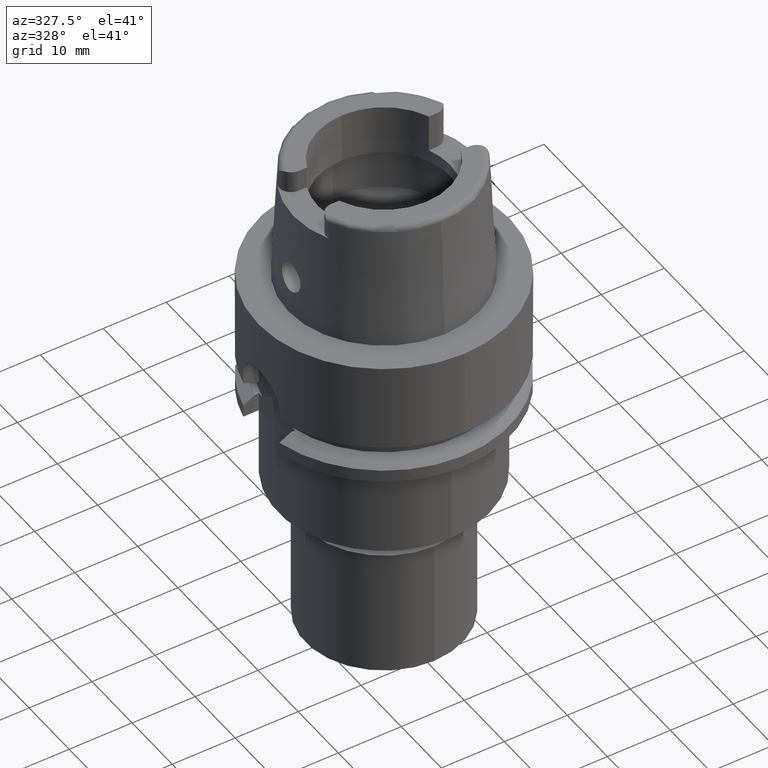
[diagram: clean part render]
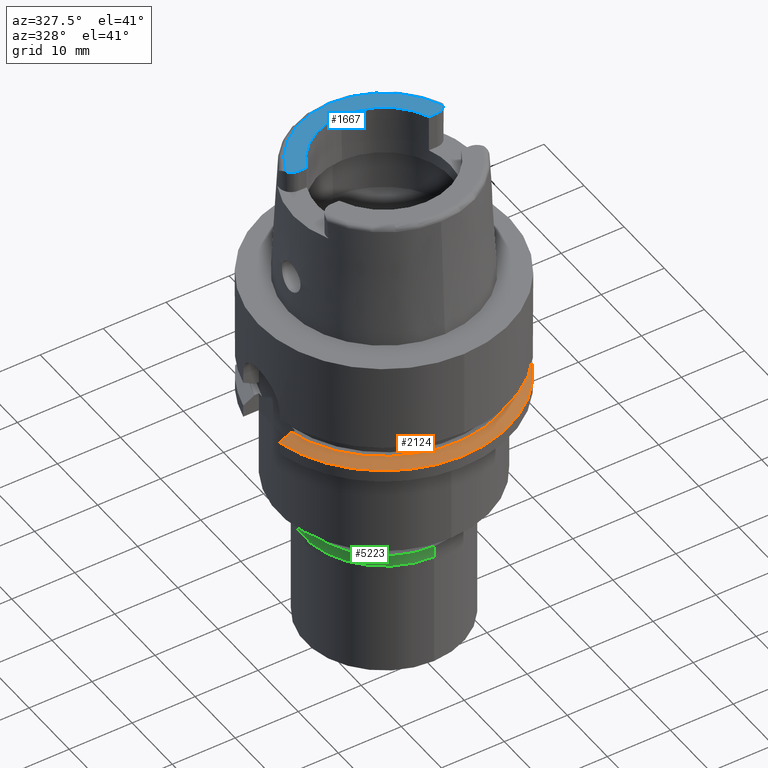
[diagram: same view with three faces highlighted in distinct colors, each labeled with its STEP entity id]
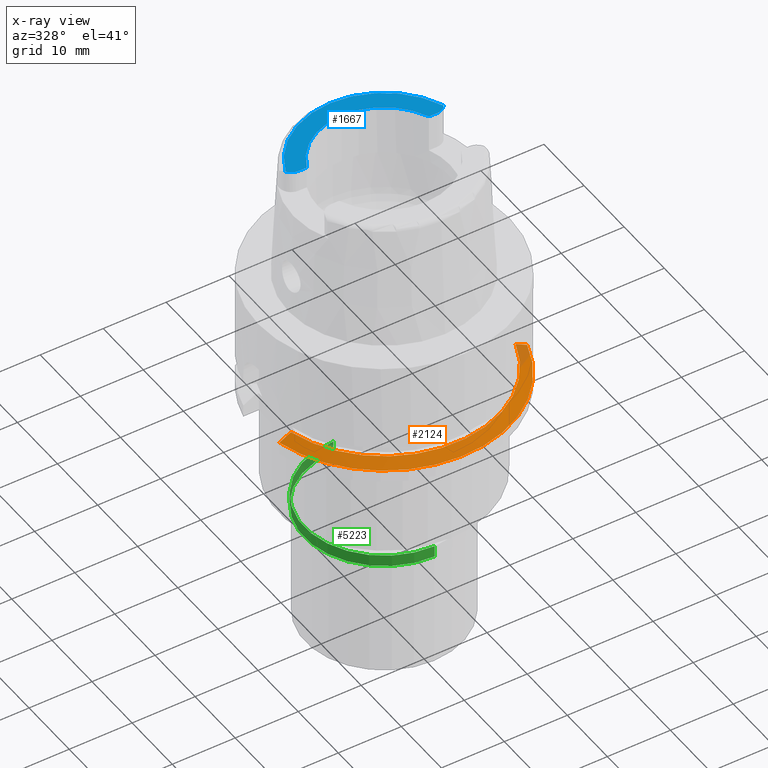
[diagram: x-ray of the same camera — body ghosted, the three highlighted faces saturated]
A machine part, auxiliary view with three faces highlighted in distinct colors.
The next image is the same camera in x-ray (body ghosted, the three faces saturated) — at least one of them is partly hidden behind the body in this view.
Their STEP definitions:

[orange] entity #2124 — the highlighted conical surface has half-angle 60 deg.
#243 = CARTESIAN_POINT ( 'NONE',  ( -17.87034388033999832, -4.500000000000000000, -17.11321766119999666 ) ) ;
#283 = CARTESIAN_POINT ( 'NONE',  ( 0.0000000000000000000, 1.010206699502999904E-14, -18.02072594216000212 ) ) ;
#303 = CARTESIAN_POINT ( 'NONE',  ( -17.66798451012000370, -4.500000000000000000, -17.00000000000000000 ) ) ;
#606 = EDGE_CURVE ( 'NONE', #4935, #5490, #4849, .T. ) ;
#636 = CARTESIAN_POINT ( 'NONE',  ( -19.28525784596000037, -4.499999999998999911, -17.90713804354999894 ) ) ;
#694 = EDGE_LOOP ( 'NONE', ( #4323, #1676, #3988, #4926 ) ) ;
#815 = AXIS2_PLACEMENT_3D ( 'NONE', #4211, #3364, #2116 ) ;
#831 = EDGE_CURVE ( 'NONE', #2115, #1159, #3154, .T. ) ;
#973 = CARTESIAN_POINT ( 'NONE',  ( 17.98542911826000079, -5.499999995041999767, -17.33212835041999966 ) ) ;
#1099 = DIRECTION ( 'NONE',  ( 0.9614442261514726251, -0.2749999999999924727, 0.0000000000000000000 ) ) ;
#1159 = VERTEX_POINT ( 'NONE', #3499 ) ;
#1424 = CARTESIAN_POINT ( 'NONE',  ( 19.22888452303000051, -5.499999999998999911, -18.02072594216000212 ) ) ;
#1676 = ORIENTED_EDGE ( 'NONE', *, *, #831, .F. ) ;
#2018 = EDGE_CURVE ( 'NONE', #4935, #2115, #3763, .T. ) ;
#2115 = VERTEX_POINT ( 'NONE', #1424 ) ;
#2116 = DIRECTION ( 'NONE',  ( 0.0000000000000000000, -1.000000000000000000, 0.0000000000000000000 ) ) ;
#2124 = ADVANCED_FACE ( 'NONE', ( #5060 ), #3606, .T. ) ;
#2137 = CARTESIAN_POINT ( 'NONE',  ( 19.22888452303000051, -5.499999999998999911, -18.02072594216000212 ) ) ;
#2156 = EDGE_CURVE ( 'NONE', #1159, #5490, #4046, .T. ) ;
#2524 = CARTESIAN_POINT ( 'NONE',  ( 18.60082375438999591, -5.499999794661999175, -17.67238360300000011 ) ) ;
#2685 = CARTESIAN_POINT ( 'NONE',  ( 0.0000000000000000000, 1.010206699502999904E-14, -17.51036297107999928 ) ) ;
#2765 = CARTESIAN_POINT ( 'NONE',  ( -19.48717526991000071, -4.499999999998999911, -18.02072594216000212 ) ) ;
#2776 = DIRECTION ( 'NONE',  ( 0.0000000000000000000, 0.0000000000000000000, -1.000000000000000000 ) ) ;
#2968 = CARTESIAN_POINT ( 'NONE',  ( 19.01831961899999968, -5.500000482426000481, -17.90384757388999759 ) ) ;
#3154 = CIRCLE ( 'NONE', #4319, 20.00000000000000355 ) ;
#3364 = DIRECTION ( 'NONE',  ( 0.0000000000000000000, 0.0000000000000000000, -1.000000000000000000 ) ) ;
#3499 = CARTESIAN_POINT ( 'NONE',  ( -19.48717526991000071, -4.499999999998999911, -18.02072594216000212 ) ) ;
#3525 = CARTESIAN_POINT ( 'NONE',  ( 17.58239617449000036, -5.500000148458999760, -17.10993385339000028 ) ) ;
#3606 = CONICAL_SURFACE ( 'NONE', #4330, 19.11602540378000015, 1.047197551196400456 ) ;
#3759 = CARTESIAN_POINT ( 'NONE',  ( 17.38268324078999783, -5.500000000000000000, -17.00000000000000000 ) ) ;
#3763 = B_SPLINE_CURVE_WITH_KNOTS ( 'NONE', 3,
 ( #3978, #3525, #973, #2524, #2968, #2137 ),
 .UNSPECIFIED., .F., .F.,
 ( 4, 1, 1, 4 ),
 ( 0.0000000000000000000, 0.3333333333333000081, 0.6666666666667000474, 1.000000000000000000 ),
 .UNSPECIFIED. ) ;
#3978 = CARTESIAN_POINT ( 'NONE',  ( 17.38268324078999783, -5.500000000000000000, -17.00000000000000000 ) ) ;
#3988 = ORIENTED_EDGE ( 'NONE', *, *, #2018, .F. ) ;
#4046 = B_SPLINE_CURVE_WITH_KNOTS ( 'NONE', 3,
 ( #2765, #636, #4061, #5334, #243, #303 ),
 .UNSPECIFIED., .F., .F.,
 ( 4, 1, 1, 4 ),
 ( 0.0000000000000000000, 0.3333333333333000081, 0.6666666666667000474, 1.000000000000000000 ),
 .UNSPECIFIED. ) ;
#4061 = CARTESIAN_POINT ( 'NONE',  ( -18.88128293141999947, -4.500000000000000000, -17.68007248934999964 ) ) ;
#4211 = CARTESIAN_POINT ( 'NONE',  ( 0.0000000000000000000, 1.010206699502999904E-14, -17.00000000000000000 ) ) ;
#4319 = AXIS2_PLACEMENT_3D ( 'NONE', #283, #2776, #1099 ) ;
#4323 = ORIENTED_EDGE ( 'NONE', *, *, #2156, .F. ) ;
#4330 = AXIS2_PLACEMENT_3D ( 'NONE', #2685, #4650, #4439 ) ;
#4439 = DIRECTION ( 'NONE',  ( 0.0000000000000000000, -1.000000000000000000, 0.0000000000000000000 ) ) ;
#4650 = DIRECTION ( 'NONE',  ( 0.0000000000000000000, 0.0000000000000000000, -1.000000000000000000 ) ) ;
#4849 = CIRCLE ( 'NONE', #815, 18.23205080757000118 ) ;
#4926 = ORIENTED_EDGE ( 'NONE', *, *, #606, .T. ) ;
#4935 = VERTEX_POINT ( 'NONE', #3759 ) ;
#5060 = FACE_OUTER_BOUND ( 'NONE', #694, .T. ) ;
#5334 = CARTESIAN_POINT ( 'NONE',  ( -18.27489697164999782, -4.500000000000000000, -17.33980939873999816 ) ) ;
#5343 = CARTESIAN_POINT ( 'NONE',  ( -17.66798451012000370, -4.500000000000000000, -17.00000000000000000 ) ) ;
#5490 = VERTEX_POINT ( 'NONE', #5343 ) ;

[blue] entity #1667 — the highlighted planar face has unit normal (0, 0, -1).
#40 = LINE ( 'NONE', #4721, #991 ) ;
#184 = CARTESIAN_POINT ( 'NONE',  ( 0.0000000000000000000, 10.50000000000000000, 20.00000000000000000 ) ) ;
#381 = DIRECTION ( 'NONE',  ( 0.0000000000000000000, 0.0000000000000000000, 1.000000000000000000 ) ) ;
#436 = DIRECTION ( 'NONE',  ( 0.8199385816669358951, -0.5724515021327251096, 0.0000000000000000000 ) ) ;
#508 = VERTEX_POINT ( 'NONE', #184 ) ;
#687 = CARTESIAN_POINT ( 'NONE',  ( 11.00000000000000000, 4.025000000000000355, 20.00000000000000000 ) ) ;
#727 = CIRCLE ( 'NONE', #2520, 10.50000000000000000 ) ;
#735 = CARTESIAN_POINT ( 'NONE',  ( 9.697905701747998819, 4.025000000000000355, 20.00000000000000000 ) ) ;
#855 = CARTESIAN_POINT ( 'NONE',  ( 11.00000000000000000, 5.904999999999999361, 20.00000000000000000 ) ) ;
#863 = VERTEX_POINT ( 'NONE', #1920 ) ;
#915 = AXIS2_PLACEMENT_3D ( 'NONE', #5270, #4932, #4425 ) ;
#956 = VERTEX_POINT ( 'NONE', #3327 ) ;
#989 = PLANE ( 'NONE',  #915 ) ;
#991 = VECTOR ( 'NONE', #5156, 1000.000000000000000 ) ;
#1135 = CARTESIAN_POINT ( 'NONE',  ( 0.0000000000000000000, 1.514765625864999983E-14, 20.00000000000000000 ) ) ;
#1433 = AXIS2_PLACEMENT_3D ( 'NONE', #4883, #2733, #3229 ) ;
#1474 = EDGE_CURVE ( 'NONE', #2381, #4385, #5213, .T. ) ;
#1490 = ORIENTED_EDGE ( 'NONE', *, *, #1474, .T. ) ;
#1667 = ADVANCED_FACE ( 'NONE', ( #4074 ), #989, .F. ) ;
#1724 = CIRCLE ( 'NONE', #4231, 1.880000000000000115 ) ;
#1901 = ORIENTED_EDGE ( 'NONE', *, *, #4884, .F. ) ;
#1920 = CARTESIAN_POINT ( 'NONE',  ( -12.54148453352999937, 4.828791175990000184, 20.00000000000000000 ) ) ;
#2193 = ORIENTED_EDGE ( 'NONE', *, *, #3983, .F. ) ;
#2223 = EDGE_LOOP ( 'NONE', ( #3955, #3223, #3121, #1901, #4381, #2193, #1490 ) ) ;
#2271 = VECTOR ( 'NONE', #4304, 1000.000000000000000 ) ;
#2301 = VERTEX_POINT ( 'NONE', #687 ) ;
#2381 = VERTEX_POINT ( 'NONE', #2481 ) ;
#2388 = EDGE_CURVE ( 'NONE', #863, #956, #4194, .T. ) ;
#2462 = CARTESIAN_POINT ( 'NONE',  ( -9.697905701747998819, 4.025000000000000355, 20.00000000000000000 ) ) ;
#2481 = CARTESIAN_POINT ( 'NONE',  ( -11.00000000000000000, 4.025000000000000355, 20.00000000000000000 ) ) ;
#2520 = AXIS2_PLACEMENT_3D ( 'NONE', #1135, #381, #4139 ) ;
#2623 = CARTESIAN_POINT ( 'NONE',  ( -11.00000000000000000, 5.904999999999999361, 20.00000000000000000 ) ) ;
#2733 = DIRECTION ( 'NONE',  ( 0.0000000000000000000, 0.0000000000000000000, 1.000000000000000000 ) ) ;
#2998 = EDGE_CURVE ( 'NONE', #4983, #508, #3130, .T. ) ;
#3121 = ORIENTED_EDGE ( 'NONE', *, *, #3968, .T. ) ;
#3125 = AXIS2_PLACEMENT_3D ( 'NONE', #4698, #5052, #3316 ) ;
#3130 = CIRCLE ( 'NONE', #1433, 10.49999999999999822 ) ;
#3223 = ORIENTED_EDGE ( 'NONE', *, *, #2998, .F. ) ;
#3229 = DIRECTION ( 'NONE',  ( 0.9236100668331782559, 0.3833333333332911153, 0.0000000000000000000 ) ) ;
#3316 = DIRECTION ( 'NONE',  ( 0.001485959642573941777, 0.9999988959613608230, 0.0000000000000000000 ) ) ;
#3327 = CARTESIAN_POINT ( 'NONE',  ( 12.54148453352999937, 4.828791175991000273, 20.00000000000000000 ) ) ;
#3398 = CARTESIAN_POINT ( 'NONE',  ( -11.00000000000000000, 4.025000000000000355, 20.00000000000000000 ) ) ;
#3884 = DIRECTION ( 'NONE',  ( 0.0000000000000000000, 0.0000000000000000000, -1.000000000000000000 ) ) ;
#3955 = ORIENTED_EDGE ( 'NONE', *, *, #4751, .F. ) ;
#3968 = EDGE_CURVE ( 'NONE', #4983, #2301, #40, .T. ) ;
#3983 = EDGE_CURVE ( 'NONE', #2381, #863, #4124, .T. ) ;
#4036 = AXIS2_PLACEMENT_3D ( 'NONE', #2623, #3884, #4746 ) ;
#4074 = FACE_OUTER_BOUND ( 'NONE', #2223, .T. ) ;
#4124 = CIRCLE ( 'NONE', #4036, 1.879999999999999671 ) ;
#4139 = DIRECTION ( 'NONE',  ( 0.0000000000000000000, 1.000000000000000000, 0.0000000000000000000 ) ) ;
#4194 = CIRCLE ( 'NONE', #3125, 13.43897535254000175 ) ;
#4231 = AXIS2_PLACEMENT_3D ( 'NONE', #855, #4282, #436 ) ;
#4282 = DIRECTION ( 'NONE',  ( 0.0000000000000000000, 0.0000000000000000000, -1.000000000000000000 ) ) ;
#4304 = DIRECTION ( 'NONE',  ( 1.000000000000000000, 1.841711261934000221E-14, 0.0000000000000000000 ) ) ;
#4381 = ORIENTED_EDGE ( 'NONE', *, *, #2388, .F. ) ;
#4385 = VERTEX_POINT ( 'NONE', #2462 ) ;
#4425 = DIRECTION ( 'NONE',  ( 0.0000000000000000000, -1.000000000000000000, 0.0000000000000000000 ) ) ;
#4698 = CARTESIAN_POINT ( 'NONE',  ( 0.0000000000000000000, 1.459778984583999657E-14, 20.00000000000000000 ) ) ;
#4721 = CARTESIAN_POINT ( 'NONE',  ( 9.697905701747998819, 4.025000000000000355, 20.00000000000000000 ) ) ;
#4746 = DIRECTION ( 'NONE',  ( 0.0000000000000000000, -1.000000000000000000, 0.0000000000000000000 ) ) ;
#4751 = EDGE_CURVE ( 'NONE', #508, #4385, #727, .T. ) ;
#4883 = CARTESIAN_POINT ( 'NONE',  ( 0.0000000000000000000, 1.514765625864999983E-14, 20.00000000000000000 ) ) ;
#4884 = EDGE_CURVE ( 'NONE', #956, #2301, #1724, .T. ) ;
#4932 = DIRECTION ( 'NONE',  ( 0.0000000000000000000, 0.0000000000000000000, -1.000000000000000000 ) ) ;
#4983 = VERTEX_POINT ( 'NONE', #735 ) ;
#5052 = DIRECTION ( 'NONE',  ( 0.0000000000000000000, 0.0000000000000000000, -1.000000000000000000 ) ) ;
#5156 = DIRECTION ( 'NONE',  ( 1.000000000000000000, -1.909922790154000057E-14, 0.0000000000000000000 ) ) ;
#5213 = LINE ( 'NONE', #3398, #2271 ) ;
#5270 = CARTESIAN_POINT ( 'NONE',  ( 0.0000000000000000000, 1.469576158977000060E-14, 20.00000000000000000 ) ) ;

[green] entity #5223 — the highlighted cylindrical surface (partial cylindrical patch) has radius 12.65 mm, axis along (0, 0, -1).
#65 = CARTESIAN_POINT ( 'NONE',  ( 0.0000000000000000000, 12.65000000000000036, 0.0000000000000000000 ) ) ;
#186 = DIRECTION ( 'NONE',  ( 0.0000000000000000000, 0.0000000000000000000, -1.000000000000000000 ) ) ;
#217 = DIRECTION ( 'NONE',  ( 0.0000000000000000000, -1.000000000000000000, 0.0000000000000000000 ) ) ;
#474 = EDGE_CURVE ( 'NONE', #3808, #5211, #4037, .T. ) ;
#936 = DIRECTION ( 'NONE',  ( 0.0000000000000000000, 0.0000000000000000000, -1.000000000000000000 ) ) ;
#975 = ORIENTED_EDGE ( 'NONE', *, *, #4083, .T. ) ;
#999 = DIRECTION ( 'NONE',  ( 0.0000000000000000000, 0.0000000000000000000, 1.000000000000000000 ) ) ;
#1055 = CARTESIAN_POINT ( 'NONE',  ( 0.0000000000000000000, 0.0000000000000000000, 0.0000000000000000000 ) ) ;
#1443 = VECTOR ( 'NONE', #186, 1000.000000000000000 ) ;
#1696 = CARTESIAN_POINT ( 'NONE',  ( 0.0000000000000000000, 12.65000000000000036, -1.850000000000000089 ) ) ;
#1887 = ORIENTED_EDGE ( 'NONE', *, *, #3807, .T. ) ;
#3162 = AXIS2_PLACEMENT_3D ( 'NONE', #4334, #5068, #4275 ) ;
#3165 = LINE ( 'NONE', #4028, #1443 ) ;
#3188 = CARTESIAN_POINT ( 'NONE',  ( 0.0000000000000000000, -12.65000000000000036, 0.0000000000000000000 ) ) ;
#3333 = EDGE_LOOP ( 'NONE', ( #1887, #3443, #4165, #975 ) ) ;
#3367 = CYLINDRICAL_SURFACE ( 'NONE', #3162, 12.65000000000000036 ) ;
#3443 = ORIENTED_EDGE ( 'NONE', *, *, #3686, .F. ) ;
#3493 = VECTOR ( 'NONE', #936, 1000.000000000000000 ) ;
#3549 = CARTESIAN_POINT ( 'NONE',  ( 0.0000000000000000000, 0.0000000000000000000, -1.850000000000000089 ) ) ;
#3686 = EDGE_CURVE ( 'NONE', #3808, #5404, #3165, .T. ) ;
#3807 = EDGE_CURVE ( 'NONE', #4845, #5404, #5447, .T. ) ;
#3808 = VERTEX_POINT ( 'NONE', #3188 ) ;
#3877 = CARTESIAN_POINT ( 'NONE',  ( 0.0000000000000000000, 12.65000000000000036, 0.0000000000000000000 ) ) ;
#3907 = LINE ( 'NONE', #65, #3493 ) ;
#4028 = CARTESIAN_POINT ( 'NONE',  ( 0.0000000000000000000, -12.65000000000000036, 0.0000000000000000000 ) ) ;
#4037 = CIRCLE ( 'NONE', #4218, 12.65000000000000036 ) ;
#4083 = EDGE_CURVE ( 'NONE', #5211, #4845, #3907, .T. ) ;
#4165 = ORIENTED_EDGE ( 'NONE', *, *, #474, .T. ) ;
#4218 = AXIS2_PLACEMENT_3D ( 'NONE', #1055, #5224, #217 ) ;
#4275 = DIRECTION ( 'NONE',  ( 0.0000000000000000000, -1.000000000000000000, 0.0000000000000000000 ) ) ;
#4334 = CARTESIAN_POINT ( 'NONE',  ( 0.0000000000000000000, 0.0000000000000000000, 0.0000000000000000000 ) ) ;
#4845 = VERTEX_POINT ( 'NONE', #1696 ) ;
#5068 = DIRECTION ( 'NONE',  ( 0.0000000000000000000, 0.0000000000000000000, -1.000000000000000000 ) ) ;
#5097 = FACE_OUTER_BOUND ( 'NONE', #3333, .T. ) ;
#5211 = VERTEX_POINT ( 'NONE', #3877 ) ;
#5223 = ADVANCED_FACE ( 'NONE', ( #5097 ), #3367, .T. ) ;
#5224 = DIRECTION ( 'NONE',  ( 0.0000000000000000000, 0.0000000000000000000, -1.000000000000000000 ) ) ;
#5241 = CARTESIAN_POINT ( 'NONE',  ( 0.0000000000000000000, -12.65000000000000036, -1.850000000000000089 ) ) ;
#5309 = DIRECTION ( 'NONE',  ( 0.0000000000000000000, 1.000000000000000000, 0.0000000000000000000 ) ) ;
#5363 = AXIS2_PLACEMENT_3D ( 'NONE', #3549, #999, #5309 ) ;
#5404 = VERTEX_POINT ( 'NONE', #5241 ) ;
#5447 = CIRCLE ( 'NONE', #5363, 12.65000000000000036 ) ;